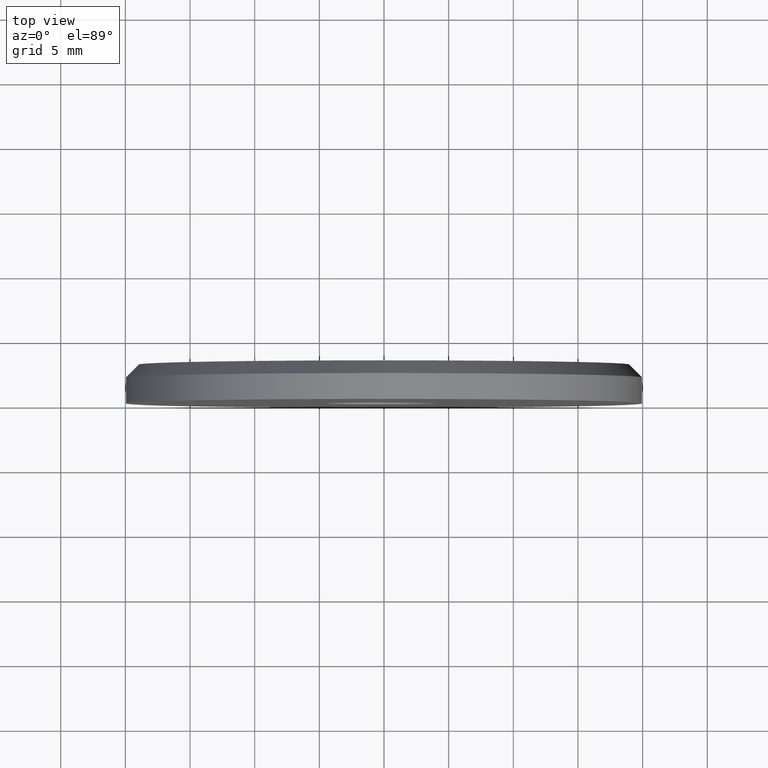
[diagram: clean part render]
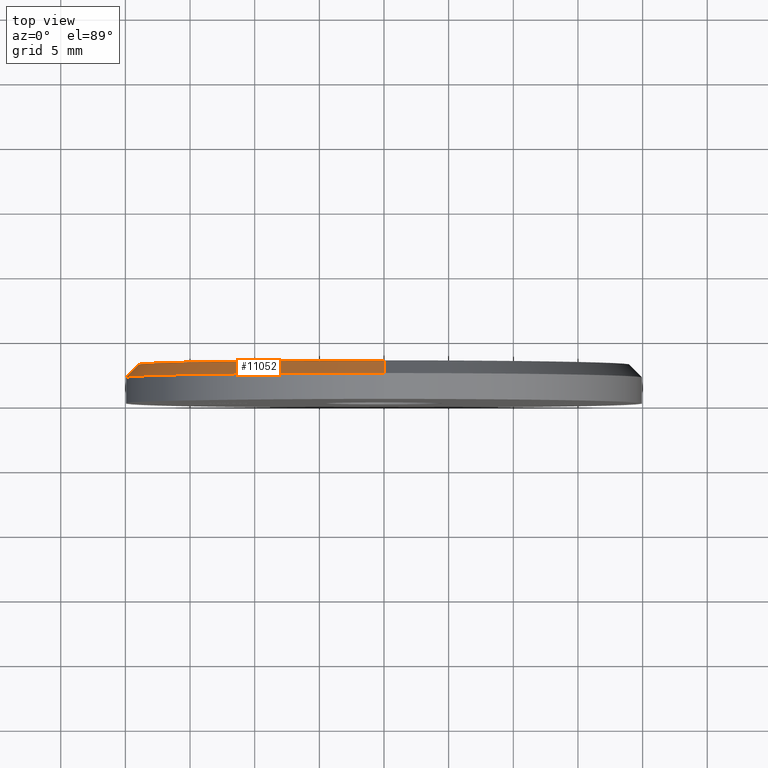
[diagram: same view with one face highlighted and labeled with its STEP entity id]
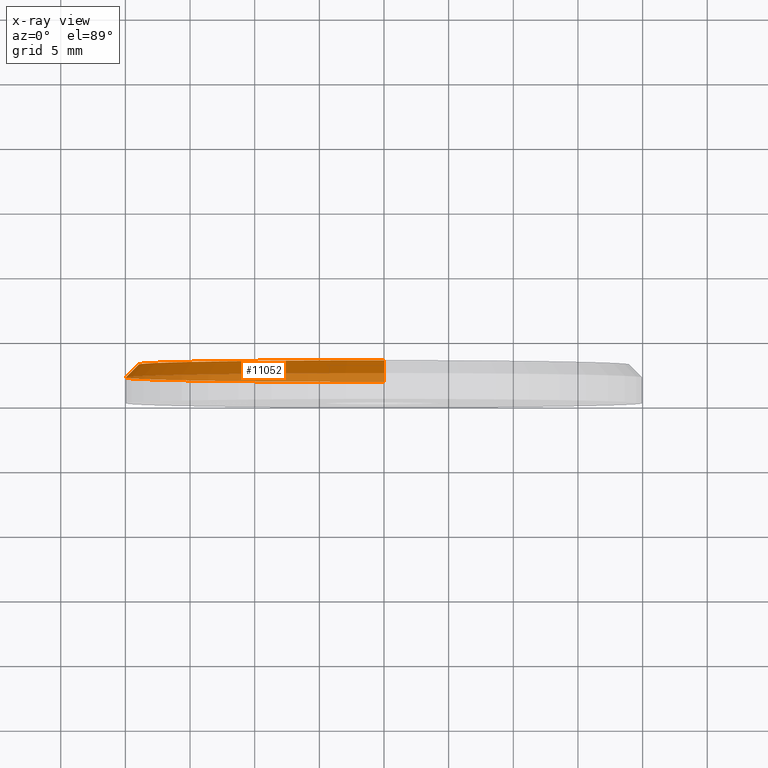
[diagram: x-ray of the same camera — body ghosted, the highlighted face saturated]
A machine part, top view. The second image highlights one B-rep face of the part: STEP entity #11052.
The next image is the same camera in x-ray: the body ghosted, the highlighted face saturated — about 36% of this face is hidden behind the body in this view.
In plain terms, the highlighted conical surface has half-angle 45 deg.
Its self-contained STEP definition (entity closure, byte-faithful):
#413 = CARTESIAN_POINT ( 'NONE',  ( 0.000000000000000000, 3.000000000000000000, -18.99999999999998934 ) ) ;
#740 = EDGE_CURVE ( 'NONE', #4815, #4900, #11780, .T. ) ;
#1077 = DIRECTION ( 'NONE',  ( 0.000000000000000000, 0.000000000000000000, 1.000000000000000000 ) ) ;
#1090 = DIRECTION ( 'NONE',  ( 0.000000000000000000, -1.000000000000000000, 0.000000000000000000 ) ) ;
#1606 = VECTOR ( 'NONE', #3514, 1000.000000000000114 ) ;
#1969 = DIRECTION ( 'NONE',  ( 0.000000000000000000, 1.000000000000000000, 0.000000000000000000 ) ) ;
#2276 = CARTESIAN_POINT ( 'NONE',  ( 2.449293598294706513E-15, 1.999999999999988676, 20.00000000000000000 ) ) ;
#2359 = CIRCLE ( 'NONE', #9479, 18.99999999999998934 ) ;
#2678 = LINE ( 'NONE', #7335, #4437 ) ;
#2765 = DIRECTION ( 'NONE',  ( 0.000000000000000000, -0.7071067811865474617, -0.7071067811865474617 ) ) ;
#2980 = DIRECTION ( 'NONE',  ( 0.000000000000000000, 0.000000000000000000, 1.000000000000000000 ) ) ;
#3116 = VERTEX_POINT ( 'NONE', #413 ) ;
#3189 = ORIENTED_EDGE ( 'NONE', *, *, #13471, .F. ) ;
#3514 = DIRECTION ( 'NONE',  ( 8.659560562354932858E-17, -0.7071067811865474617, 0.7071067811865474617 ) ) ;
#4437 = VECTOR ( 'NONE', #2765, 1000.000000000000114 ) ;
#4460 = DIRECTION ( 'NONE',  ( 0.000000000000000000, 0.000000000000000000, -1.000000000000000000 ) ) ;
#4561 = ORIENTED_EDGE ( 'NONE', *, *, #4926, .F. ) ;
#4815 = VERTEX_POINT ( 'NONE', #2276 ) ;
#4900 = VERTEX_POINT ( 'NONE', #9025 ) ;
#4926 = EDGE_CURVE ( 'NONE', #11647, #4815, #12218, .T. ) ;
#7335 = CARTESIAN_POINT ( 'NONE',  ( 0.000000000000000000, 3.000000000000000000, -18.99999999999998934 ) ) ;
#7861 = FACE_OUTER_BOUND ( 'NONE', #10672, .T. ) ;
#7879 = CARTESIAN_POINT ( 'NONE',  ( 2.326828918379969787E-15, 3.000000000000000000, 18.99999999999998934 ) ) ;
#9025 = CARTESIAN_POINT ( 'NONE',  ( 0.000000000000000000, 1.999999999999988676, -20.00000000000000000 ) ) ;
#9214 = ORIENTED_EDGE ( 'NONE', *, *, #12011, .T. ) ;
#9479 = AXIS2_PLACEMENT_3D ( 'NONE', #14184, #1969, #1077 ) ;
#9698 = ORIENTED_EDGE ( 'NONE', *, *, #740, .F. ) ;
#10672 = EDGE_LOOP ( 'NONE', ( #4561, #3189, #9214, #9698 ) ) ;
#11052 = ADVANCED_FACE ( 'NONE', ( #7861 ), #11956, .T. ) ;
#11645 = CARTESIAN_POINT ( 'NONE',  ( 0.000000000000000000, 1.999999999999988676, 0.000000000000000000 ) ) ;
#11647 = VERTEX_POINT ( 'NONE', #12660 ) ;
#11780 = CIRCLE ( 'NONE', #12173, 20.00000000000000000 ) ;
#11956 = CONICAL_SURFACE ( 'NONE', #12297, 18.99999999999998934, 0.7853981633974482790 ) ;
#12011 = EDGE_CURVE ( 'NONE', #3116, #4900, #2678, .T. ) ;
#12173 = AXIS2_PLACEMENT_3D ( 'NONE', #11645, #14001, #2980 ) ;
#12218 = LINE ( 'NONE', #7879, #1606 ) ;
#12297 = AXIS2_PLACEMENT_3D ( 'NONE', #14196, #1090, #4460 ) ;
#12660 = CARTESIAN_POINT ( 'NONE',  ( 2.388061258337338150E-15, 3.000000000000000000, 18.99999999999998934 ) ) ;
#13471 = EDGE_CURVE ( 'NONE', #3116, #11647, #2359, .T. ) ;
#14001 = DIRECTION ( 'NONE',  ( 0.000000000000000000, -1.000000000000000000, 0.000000000000000000 ) ) ;
#14184 = CARTESIAN_POINT ( 'NONE',  ( 0.000000000000000000, 3.000000000000000000, 0.000000000000000000 ) ) ;
#14196 = CARTESIAN_POINT ( 'NONE',  ( 0.000000000000000000, 3.000000000000000000, 0.000000000000000000 ) ) ;